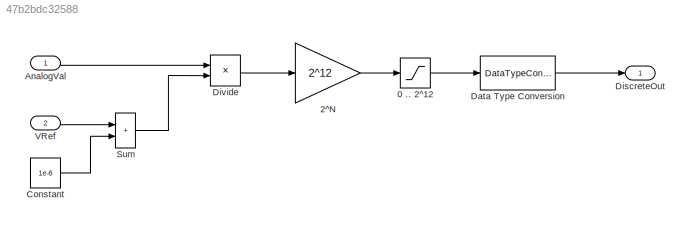
MODEL slx_47b2bdc32588
KIND model
CONFIG AbsTol = auto
CONFIG EnableMultiTasking = off
CONFIG FixedStep = 0.001
CONFIG MaxStep = auto
CONFIG MinStep = auto
CONFIG RelTol = 1e-3
CONFIG SampleTimeConstraint = Unconstrained
CONFIG SolverName = FixedStepDiscrete
CONFIG StartTime = 0.0
CONFIG StopTime = 10.0
BLOCK [Saturate] 0 .. 2^12
  LowerLimit = 0
  UpperLimit = 2^12
BLOCK [Gain] 2^N
  Gain = 2^12
BLOCK [Inport] AnalogVal
BLOCK [Constant] Constant
  Value = 1e-6
BLOCK [DataTypeConversion] Data Type Conversion
  OutDataTypeStr = uint16
  RndMeth = Floor
  SaturateOnIntegerOverflow = off
BLOCK [Outport] DiscreteOut
BLOCK [Product] Divide
  Inputs = */
BLOCK [Sum] Sum
  IconShape = rectangular
BLOCK [Inport] VRef
  Port = 2
LINE 0 .. 2^12:1 -> Data Type Conversion:1
LINE 2^N:1 -> 0 .. 2^12:1
LINE AnalogVal:1 -> Divide:1
LINE Constant:1 -> Sum:2
LINE Data Type Conversion:1 -> DiscreteOut:1
LINE Divide:1 -> 2^N:1
LINE Sum:1 -> Divide:2
LINE VRef:1 -> Sum:1
